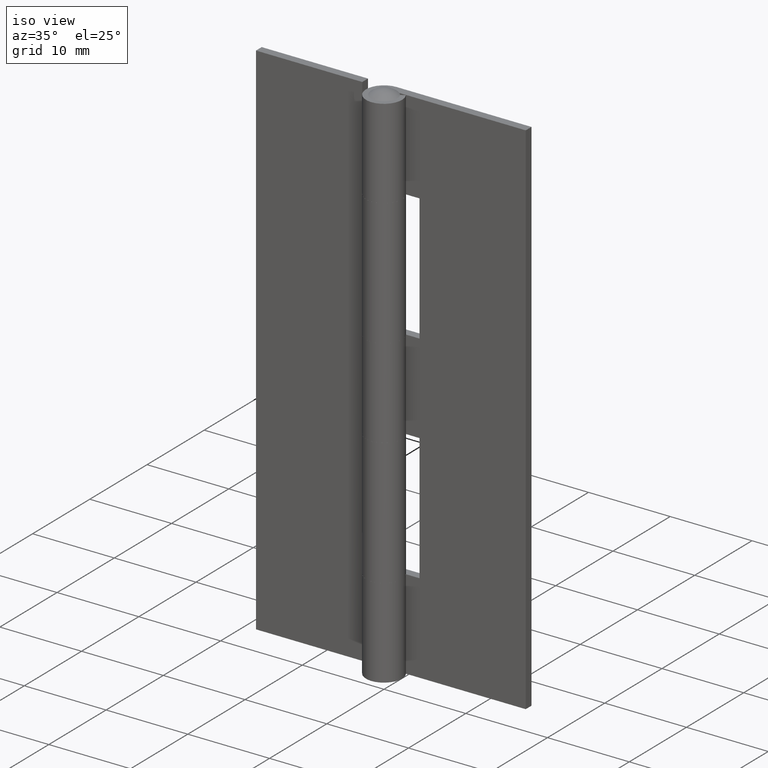
[diagram: clean part render]
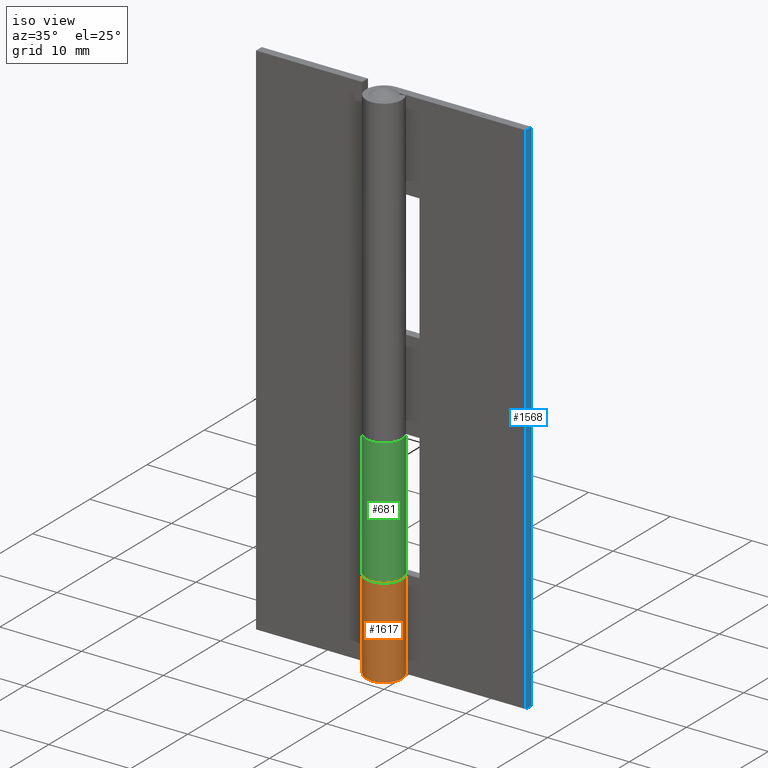
[diagram: same view with three faces highlighted in distinct colors, each labeled with its STEP entity id]
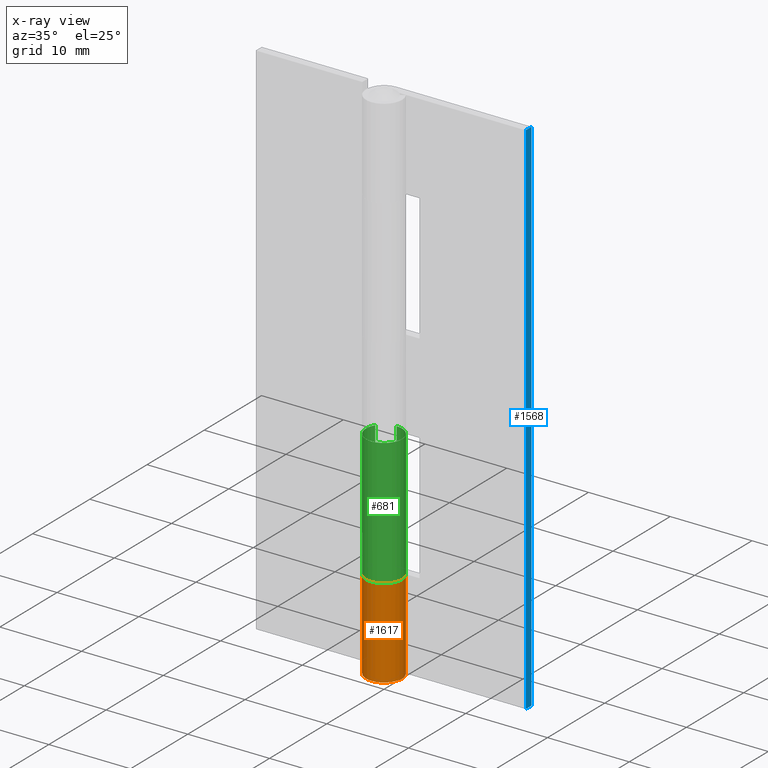
[diagram: x-ray of the same camera — body ghosted, the three highlighted faces saturated]
A machine part, iso view with three faces highlighted in distinct colors.
The next image is the same camera in x-ray (body ghosted, the three faces saturated) — at least one of them is partly hidden behind the body in this view.
Their STEP definitions:

[orange] entity #1617 — the highlighted face is a freeform B-spline surface patch.
#1419=CARTESIAN_POINT('',(1.875497693946860,1.149996000000000,11.0));
#1420=VERTEX_POINT('',#1419);
#1429=CARTESIAN_POINT('',(1.431147E-014,2.199996000000000,11.0));
#1430=VERTEX_POINT('',#1429);
#1436=CARTESIAN_POINT('',(1.875497693946860,1.149996000000000,11.0));
#1437=CARTESIAN_POINT('',(2.009625519318492,0.931606800068705,10.999999999999989));
#1438=CARTESIAN_POINT('',(2.183270822612398,0.490069220177745,11.000000000000011));
#1439=CARTESIAN_POINT('',(2.219495069139132,-0.148636746253519,11.000000000000011));
#1440=CARTESIAN_POINT('',(2.119843904468142,-0.639287639564121,11.0));
#1441=CARTESIAN_POINT('',(1.939170276186306,-1.071993787150265,10.999999999999950));
#1442=CARTESIAN_POINT('',(1.698649360677498,-1.422730253624527,11.000000000000160));
#1443=CARTESIAN_POINT('',(1.371018296197426,-1.736684492477892,10.999999999999790));
#1444=CARTESIAN_POINT('',(1.041254271199213,-1.952316943720001,11.000000000000300));
#1445=CARTESIAN_POINT('',(0.678124685029012,-2.103323195180803,10.999999999999790));
#1446=CARTESIAN_POINT('',(0.324629461246717,-2.185963516015333,10.999999999999361));
#1447=CARTESIAN_POINT('',(-0.037622934184407,-2.209616010700414,11.000000000000490));
#1448=CARTESIAN_POINT('',(-0.428963907189832,-2.170650848556859,10.999999999999719));
#1449=CARTESIAN_POINT('',(-0.865359736122544,-2.043191765639836,11.000000000000220));
#1450=CARTESIAN_POINT('',(-1.262955032607220,-1.820581764678560,10.999999999999920));
#1451=CARTESIAN_POINT('',(-1.582460864852061,-1.542591199354249,11.000000000000030));
#1452=CARTESIAN_POINT('',(-1.852228465485098,-1.216085809876153,11.000000000000060));
#1453=CARTESIAN_POINT('',(-2.078792569783175,-0.786039649083507,11.000000000000041));
#1454=CARTESIAN_POINT('',(-2.193436938425665,-0.313667227742261,10.999999999999551));
#1455=CARTESIAN_POINT('',(-2.208199713568426,0.139864505024081,11.000000000001180));
#1456=CARTESIAN_POINT('',(-2.134657297647563,0.619202328041211,10.999999999999311));
#1457=CARTESIAN_POINT('',(-1.921598587725114,1.124422371502818,11.000000000000229));
#1458=CARTESIAN_POINT('',(-1.546029340979772,1.602070804816784,10.999999999999959));
#1459=CARTESIAN_POINT('',(-1.129812539514625,1.910183678699043,10.999999999999890));
#1460=CARTESIAN_POINT('',(-0.602889676432754,2.139869225376693,11.000000000000300));
#1461=CARTESIAN_POINT('',(-0.241213871251946,2.200152881013663,10.999999999999771));
#1462=CARTESIAN_POINT('',(1.431147E-014,2.199996000000000,11.0));
#1463=B_SPLINE_CURVE_WITH_KNOTS('',3,(#1436,#1437,#1438,#1439,#1440,#1441,#1442,#1443,#1444,#1445,#1446,#1447,#1448,#1449,#1450,#1451,#1452,#1453,#1454,#1455,#1456,#1457,#1458,#1459,#1460,#1461,#1462),.UNSPECIFIED.,.F.,.U.,(4,1,1,1,1,1,1,1,1,1,1,1,1,1,1,1,1,1,1,1,1,1,1,1,4),(0.000000077843978,0.768799531178948,1.401968614064984,1.899443346042762,2.261263872264845,2.803936711289799,3.165713619587564,3.617968337846623,3.979767644631568,4.341577385854124,4.703387127085115,5.065186433907778,5.517441152048787,6.060098510942691,6.421893318902480,6.783699487248528,7.326414567862968,7.869111713455575,8.230936894797740,8.683154722890784,9.316278210237918,9.858993472508114,10.492156909763320,10.853956216570911,11.577539614206110),.UNSPECIFIED.);
#1464=EDGE_CURVE('',#1420,#1430,#1463,.T.);
#1474=CARTESIAN_POINT('',(1.875497693946860,1.149996000000000,0.0));
#1475=VERTEX_POINT('',#1474);
#1476=CARTESIAN_POINT('',(1.421085E-014,2.199996000000000,0.0));
#1477=VERTEX_POINT('',#1476);
#1478=CARTESIAN_POINT('',(1.875497693946860,1.149996000000000,0.0));
#1479=CARTESIAN_POINT('',(1.954313118858596,1.021497479588656,0.0));
#1480=CARTESIAN_POINT('',(2.078807324433945,0.761878707834410,0.0));
#1481=CARTESIAN_POINT('',(2.195855667737104,0.307385741114853,0.0));
#1482=CARTESIAN_POINT('',(2.214568097121056,-0.208736907153735,0.0));
#1483=CARTESIAN_POINT('',(2.104584508739922,-0.698467180890234,0.0));
#1484=CARTESIAN_POINT('',(1.880704029247557,-1.178223880528041,0.0));
#1485=CARTESIAN_POINT('',(1.599577960917195,-1.538393897463125,0.0));
#1486=CARTESIAN_POINT('',(1.247223842954768,-1.824337356315901,0.0));
#1487=CARTESIAN_POINT('',(0.931739601213136,-2.003916864909186,0.0));
#1488=CARTESIAN_POINT('',(0.562711095132119,-2.139873683365666,0.0));
#1489=CARTESIAN_POINT('',(0.084592089286464,-2.221042471164766,0.0));
#1490=CARTESIAN_POINT('',(-0.492417456327392,-2.175554894506599,0.0));
#1491=CARTESIAN_POINT('',(-1.089658841971883,-1.946347929130570,0.0));
#1492=CARTESIAN_POINT('',(-1.548891271952391,-1.594058872969704,0.0));
#1493=CARTESIAN_POINT('',(-1.868762065802153,-1.190112266967427,0.0));
#1494=CARTESIAN_POINT('',(-2.072347137130027,-0.783598924275459,0.0));
#1495=CARTESIAN_POINT('',(-2.196444158968052,-0.314779175868604,0.0));
#1496=CARTESIAN_POINT('',(-2.211279832714023,0.140655252560082,0.0));
#1497=CARTESIAN_POINT('',(-2.122806590088829,0.647272864313317,0.0));
#1498=CARTESIAN_POINT('',(-1.921600876444881,1.124421019141407,0.0));
#1499=CARTESIAN_POINT('',(-1.546028789437736,1.602073462545305,0.0));
#1500=CARTESIAN_POINT('',(-1.129810989537430,1.910173698192583,0.0));
#1501=CARTESIAN_POINT('',(-0.602893483678891,2.139892884929184,0.0));
#1502=CARTESIAN_POINT('',(-0.241210314875761,2.200129694295677,0.0));
#1503=CARTESIAN_POINT('',(1.421085E-014,2.199996000000000,0.0));
#1504=B_SPLINE_CURVE_WITH_KNOTS('',3,(#1478,#1479,#1480,#1481,#1482,#1483,#1484,#1485,#1486,#1487,#1488,#1489,#1490,#1491,#1492,#1493,#1494,#1495,#1496,#1497,#1498,#1499,#1500,#1501,#1502,#1503),.UNSPECIFIED.,.F.,.U.,(4,1,1,1,1,1,1,1,1,1,1,1,1,1,1,1,1,1,1,1,1,1,1,4),(0.000000077843977,0.452234280862964,0.859256757883088,1.401968614064982,1.989898777411183,2.351712335609932,2.984829712984043,3.346602768234588,3.708427949547328,4.070223689833316,4.522478085386452,5.155646344167910,5.788769831575492,6.421893318902480,6.874152535970636,7.326414567862968,7.778672313632799,8.321383006383794,8.683154722890784,9.316278210237918,9.858993472508114,10.492156909763320,10.853956216570911,11.577539614206110),.UNSPECIFIED.);
#1505=EDGE_CURVE('',#1475,#1477,#1504,.T.);
#1576=CARTESIAN_POINT('',(1.875497693946860,1.149996000000000,11.0));
#1577=CARTESIAN_POINT('',(1.875497693946860,1.149996000000000,0.0));
#1578=QUASI_UNIFORM_CURVE('',1,(#1576,#1577),.UNSPECIFIED.,.F.,.U.);
#1579=EDGE_CURVE('',#1420,#1475,#1578,.T.);
#1585=CARTESIAN_POINT('',(0.019198343190293,2.199912230893455,11.275000000000000));
#1586=CARTESIAN_POINT('',(0.019198343190293,2.199912230893455,-0.281874999999999));
#1587=CARTESIAN_POINT('',(-2.681366795014976,2.223479705814903,11.275000000000002));
#1588=CARTESIAN_POINT('',(-2.681366795014976,2.223479705814903,-0.281874999999999));
#1589=CARTESIAN_POINT('',(-2.158345654385587,-0.426059193318029,11.275000000000000));
#1590=CARTESIAN_POINT('',(-2.158345654385587,-0.426059193318029,-0.281874999999999));
#1591=CARTESIAN_POINT('',(-1.635324513756199,-3.075598092450961,11.275000000000002));
#1592=CARTESIAN_POINT('',(-1.635324513756199,-3.075598092450961,-0.281874999999999));
#1593=CARTESIAN_POINT('',(0.853712493776254,-2.027598919408487,11.275000000000000));
#1594=CARTESIAN_POINT('',(0.853712493776254,-2.027598919408487,-0.281874999999999));
#1595=CARTESIAN_POINT('',(3.342749501308707,-0.979599746366013,11.275000000000002));
#1596=CARTESIAN_POINT('',(3.342749501308707,-0.979599746366013,-0.281874999999999));
#1597=CARTESIAN_POINT('',(1.813074318463694,1.246091455609655,11.275000000000000));
#1598=CARTESIAN_POINT('',(1.813074318463694,1.246091455609655,-0.281874999999999));
#1606=(BOUNDED_SURFACE()B_SPLINE_SURFACE(1,2,((#1585,#1587,#1589,#1591,#1593,#1595,#1597),(#1586,#1588,#1590,#1592,#1594,#1596,#1598)),.UNSPECIFIED.,.F.,.F.,.U.)B_SPLINE_SURFACE_WITH_KNOTS((2,2),(3,2,2,3),(0.0,11.556875000000000),(0.0,4.181677020682062,8.363354041364124,12.545031062046190),.UNSPECIFIED.)GEOMETRIC_REPRESENTATION_ITEM()RATIONAL_B_SPLINE_SURFACE(((1.0,0.631578351302498,1.0,0.631578351302498,1.0,0.631578351302498,1.0),(1.0,0.631578351302498,1.0,0.631578351302498,1.0,0.631578351302498,1.0)))REPRESENTATION_ITEM('')SURFACE());
#1607=ORIENTED_EDGE('',*,*,#1579,.F.);
#1608=ORIENTED_EDGE('',*,*,#1464,.T.);
#1609=CARTESIAN_POINT('',(1.431147E-014,2.199996000000000,11.0));
#1610=CARTESIAN_POINT('',(1.421085E-014,2.199996000000000,0.0));
#1611=QUASI_UNIFORM_CURVE('',1,(#1609,#1610),.UNSPECIFIED.,.F.,.U.);
#1612=EDGE_CURVE('',#1430,#1477,#1611,.T.);
#1613=ORIENTED_EDGE('',*,*,#1612,.T.);
#1614=ORIENTED_EDGE('',*,*,#1505,.F.);
#1615=EDGE_LOOP('',(#1607,#1608,#1613,#1614));
#1616=FACE_OUTER_BOUND('',#1615,.T.);
#1617=ADVANCED_FACE('',(#1616),#1606,.T.);

[blue] entity #1568 — the highlighted face is a freeform B-spline surface patch.
#1109=CARTESIAN_POINT('',(16.500000000000000,1.199996000000000,0.0));
#1110=VERTEX_POINT('',#1109);
#1116=CARTESIAN_POINT('',(16.500000000000000,1.199996000000000,64.0));
#1117=VERTEX_POINT('',#1116);
#1118=CARTESIAN_POINT('',(16.500000000000000,1.199996000000000,64.0));
#1119=CARTESIAN_POINT('',(16.500000000000000,1.199996000000000,0.0));
#1120=QUASI_UNIFORM_CURVE('',1,(#1118,#1119),.UNSPECIFIED.,.F.,.U.);
#1121=EDGE_CURVE('',#1117,#1110,#1120,.T.);
#1507=CARTESIAN_POINT('',(16.500000000000000,2.199996000000000,0.0));
#1508=VERTEX_POINT('',#1507);
#1514=CARTESIAN_POINT('',(16.500000000000000,2.199996000000000,0.0));
#1515=CARTESIAN_POINT('',(16.500000000000000,1.199996000000000,0.0));
#1516=QUASI_UNIFORM_CURVE('',1,(#1514,#1515),.UNSPECIFIED.,.F.,.U.);
#1517=EDGE_CURVE('',#1508,#1110,#1516,.T.);
#1538=CARTESIAN_POINT('',(16.500000000000000,2.199996000000000,64.0));
#1539=VERTEX_POINT('',#1538);
#1540=CARTESIAN_POINT('',(16.500000000000000,2.199996000000000,64.0));
#1541=CARTESIAN_POINT('',(16.500000000000000,1.199996000000000,64.0));
#1542=QUASI_UNIFORM_CURVE('',1,(#1540,#1541),.UNSPECIFIED.,.F.,.U.);
#1543=EDGE_CURVE('',#1539,#1117,#1542,.T.);
#1553=CARTESIAN_POINT('',(16.500000000000000,1.150046001938194,67.196799875955577));
#1554=CARTESIAN_POINT('',(16.500000000000000,1.150046001938194,-3.196801592569350));
#1555=CARTESIAN_POINT('',(16.500000000000000,2.249946024883897,67.196799875955577));
#1556=CARTESIAN_POINT('',(16.500000000000000,2.249946024883897,-3.196801592569350));
#1557=B_SPLINE_SURFACE_WITH_KNOTS('',1,1,((#1553,#1555),(#1554,#1556)),.UNSPECIFIED.,.F.,.F.,.U.,(2,2),(2,2),(0.0,70.393601468524921),(0.041708334948495,0.958291687403247),.UNSPECIFIED.);
#1558=ORIENTED_EDGE('',*,*,#1517,.F.);
#1559=CARTESIAN_POINT('',(16.500000000000000,2.199996000000000,64.0));
#1560=CARTESIAN_POINT('',(16.500000000000000,2.199996000000000,0.0));
#1561=QUASI_UNIFORM_CURVE('',1,(#1559,#1560),.UNSPECIFIED.,.F.,.U.);
#1562=EDGE_CURVE('',#1539,#1508,#1561,.T.);
#1563=ORIENTED_EDGE('',*,*,#1562,.F.);
#1564=ORIENTED_EDGE('',*,*,#1543,.T.);
#1565=ORIENTED_EDGE('',*,*,#1121,.T.);
#1566=EDGE_LOOP('',(#1558,#1563,#1564,#1565));
#1567=FACE_OUTER_BOUND('',#1566,.T.);
#1568=ADVANCED_FACE('',(#1567),#1557,.T.);

[green] entity #681 — the highlighted face is a freeform B-spline surface patch.
#19=CARTESIAN_POINT('',(-1.875497693946830,1.149996000000000,11.0));
#20=VERTEX_POINT('',#19);
#26=CARTESIAN_POINT('',(-1.875497693946830,1.149996000000000,26.500000000000000));
#27=VERTEX_POINT('',#26);
#28=CARTESIAN_POINT('',(-1.875497693946830,1.149996000000000,26.500000000000000));
#29=CARTESIAN_POINT('',(-1.875497693946830,1.149996000000000,11.0));
#30=QUASI_UNIFORM_CURVE('',1,(#28,#29),.UNSPECIFIED.,.F.,.U.);
#31=EDGE_CURVE('',#27,#20,#30,.T.);
#438=CARTESIAN_POINT('',(1.421085E-014,2.199996000000000,11.0));
#439=VERTEX_POINT('',#438);
#445=CARTESIAN_POINT('',(1.421085E-014,2.199996000000000,11.0));
#446=CARTESIAN_POINT('',(0.256289523674983,2.200181734907477,11.0));
#447=CARTESIAN_POINT('',(0.678239836485089,2.125379981070982,11.000000000000020));
#448=CARTESIAN_POINT('',(1.194163039161901,1.868083713803548,10.999999999999989));
#449=CARTESIAN_POINT('',(1.607192955494276,1.535261917310919,11.000000000000030));
#450=CARTESIAN_POINT('',(1.900514899047204,1.146030841226893,11.0));
#451=CARTESIAN_POINT('',(2.097650296884589,0.703958974012746,11.000000000000020));
#452=CARTESIAN_POINT('',(2.203385191629740,0.261802227114477,10.999999999999980));
#453=CARTESIAN_POINT('',(2.207529088080028,-0.224245218650214,10.999999999999980));
#454=CARTESIAN_POINT('',(2.096259153550732,-0.727358109352972,10.999999999999989));
#455=CARTESIAN_POINT('',(1.861567676405323,-1.221279868392296,11.000000000000020));
#456=CARTESIAN_POINT('',(1.523606349160536,-1.613664245691675,10.999999999999940));
#457=CARTESIAN_POINT('',(1.133524779176878,-1.900220217535857,11.000000000000091));
#458=CARTESIAN_POINT('',(0.751226068207885,-2.084304361516785,11.0));
#459=CARTESIAN_POINT('',(0.339383444196189,-2.186452147080617,10.999999999999980));
#460=CARTESIAN_POINT('',(-0.083433713287704,-2.211061466229503,11.000000000000080));
#461=CARTESIAN_POINT('',(-0.474285852904962,-2.161211306946640,10.999999999999741));
#462=CARTESIAN_POINT('',(-0.877383861402626,-2.031234854960816,11.000000000000471));
#463=CARTESIAN_POINT('',(-1.277059902298830,-1.814553092571972,10.999999999999019));
#464=CARTESIAN_POINT('',(-1.618717171591727,-1.513045907431591,11.000000000000410));
#465=CARTESIAN_POINT('',(-1.908639831866150,-1.125459134600345,10.999999999999840));
#466=CARTESIAN_POINT('',(-2.088510996603017,-0.740073196183666,11.000000000000041));
#467=CARTESIAN_POINT('',(-2.185484775267049,-0.327784944566888,11.0));
#468=CARTESIAN_POINT('',(-2.213731550525330,0.094808383130815,11.000000000000011));
#469=CARTESIAN_POINT('',(-2.142219270735577,0.606282793143760,10.999999999999851));
#470=CARTESIAN_POINT('',(-1.985892980725446,0.970123903040132,11.000000000000419));
#471=CARTESIAN_POINT('',(-1.875497693946830,1.149996000000000,11.0));
#472=B_SPLINE_CURVE_WITH_KNOTS('',3,(#445,#446,#447,#448,#449,#450,#451,#452,#453,#454,#455,#456,#457,#458,#459,#460,#461,#462,#463,#464,#465,#466,#467,#468,#469,#470,#471),.UNSPECIFIED.,.F.,.U.,(4,1,1,1,1,1,1,1,1,1,1,1,1,1,1,1,1,1,1,1,1,1,1,1,4),(0.000000077858132,0.768799531192180,1.266289419281716,1.718550717193958,2.351712335621256,2.713488203684085,3.165713619597913,3.708427949557033,4.160676686314702,4.703387127093627,5.336552003460516,5.698325058616860,6.150541547984721,6.602812840905783,6.964608581176419,7.416862976735623,7.778672313637498,8.230936894801861,8.773599495714874,9.135372550927478,9.678084378593102,10.039894877867861,10.401700864568070,10.944416126839560,11.577539614206071),.UNSPECIFIED.);
#473=EDGE_CURVE('',#439,#20,#472,.T.);
#489=CARTESIAN_POINT('',(1.431147E-014,2.199996000000000,26.500000000000000));
#490=VERTEX_POINT('',#489);
#491=CARTESIAN_POINT('',(1.431147E-014,2.199996000000000,26.500000000000000));
#492=CARTESIAN_POINT('',(0.150742393474836,2.200011865437740,26.499999999999961));
#493=CARTESIAN_POINT('',(0.482379054540879,2.165793249999264,26.500000000000050));
#494=CARTESIAN_POINT('',(0.999932718497473,1.989243696752207,26.499999999999911));
#495=CARTESIAN_POINT('',(1.428456202171348,1.698463821297101,26.500000000000099));
#496=CARTESIAN_POINT('',(1.799056605762562,1.299465359325090,26.500000000000011));
#497=CARTESIAN_POINT('',(2.042263161464467,0.877119377343849,26.499999999999890));
#498=CARTESIAN_POINT('',(2.165964679545971,0.439631584599338,26.500000000000089));
#499=CARTESIAN_POINT('',(2.209586749842592,0.049382440460644,26.499999999999861));
#500=CARTESIAN_POINT('',(2.187076616621350,-0.374351553295110,26.500000000000188));
#501=CARTESIAN_POINT('',(2.061462071365631,-0.812392812232866,26.500000000000359));
#502=CARTESIAN_POINT('',(1.849933321944211,-1.213871568256370,26.499999999999460));
#503=CARTESIAN_POINT('',(1.586495009583245,-1.546515419431908,26.500000000000330));
#504=CARTESIAN_POINT('',(1.237419967033361,-1.837772208365214,26.500000000000021));
#505=CARTESIAN_POINT('',(0.782779301380279,-2.080226232184472,26.500000000000011));
#506=CARTESIAN_POINT('',(0.221037203476172,-2.219645629113748,26.500000000000000));
#507=CARTESIAN_POINT('',(-0.357201138905382,-2.193738654918793,26.499999999999890));
#508=CARTESIAN_POINT('',(-0.850746384801080,-2.045696178569968,26.500000000000188));
#509=CARTESIAN_POINT('',(-1.277045284170200,-1.814534725013035,26.499999999999080));
#510=CARTESIAN_POINT('',(-1.687123170161891,-1.452784887459909,26.500000000000490));
#511=CARTESIAN_POINT('',(-1.987831924736207,-0.994292354454869,26.499999999999851));
#512=CARTESIAN_POINT('',(-2.156639254618628,-0.507464156832193,26.499999999999989));
#513=CARTESIAN_POINT('',(-2.222647193488633,0.003569790989892,26.500000000000139));
#514=CARTESIAN_POINT('',(-2.154278079765004,0.578293662775202,26.499999999999780));
#515=CARTESIAN_POINT('',(-1.985887470916907,0.970125158445753,26.500000000000082));
#516=CARTESIAN_POINT('',(-1.875497693946830,1.149996000000000,26.500000000000000));
#517=B_SPLINE_CURVE_WITH_KNOTS('',3,(#491,#492,#493,#494,#495,#496,#497,#498,#499,#500,#501,#502,#503,#504,#505,#506,#507,#508,#509,#510,#511,#512,#513,#514,#515,#516),.UNSPECIFIED.,.F.,.U.,(4,1,1,1,1,1,1,1,1,1,1,1,1,1,1,1,1,1,1,1,1,1,1,4),(0.000000077843275,0.452234280862342,0.994941381198490,1.628098380274848,1.989898777410794,2.623044278472365,3.075271957944667,3.346602768234339,3.798867349392427,4.341577385853938,4.703387127084953,5.155646344167777,5.607882813668120,6.060098510942596,6.693252240739232,7.326414567862945,7.778672313632773,8.230936894797713,8.773599495711419,9.406738120509710,9.858993472508125,10.311247868074540,10.944416126838810,11.577539614206110),.UNSPECIFIED.);
#518=EDGE_CURVE('',#490,#27,#517,.T.);
#649=CARTESIAN_POINT('',(-1.834545473004467,1.214259159938558,26.887499999999999));
#650=CARTESIAN_POINT('',(-1.834545473004467,1.214259159938558,10.602812500000001));
#651=CARTESIAN_POINT('',(-3.351997021564838,-1.078360044231881,26.887499999999999));
#652=CARTESIAN_POINT('',(-3.351997021564838,-1.078360044231881,10.602812499999997));
#653=CARTESIAN_POINT('',(-0.782430253389667,-2.056157897292100,26.887499999999999));
#654=CARTESIAN_POINT('',(-0.782430253389667,-2.056157897292100,10.602812500000001));
#655=CARTESIAN_POINT('',(1.787136514785504,-3.033955750352320,26.887499999999999));
#656=CARTESIAN_POINT('',(1.787136514785504,-3.033955750352320,10.602812499999997));
#657=CARTESIAN_POINT('',(2.177685931977059,-0.312516210276020,26.887499999999999));
#658=CARTESIAN_POINT('',(2.177685931977059,-0.312516210276020,10.602812500000001));
#659=CARTESIAN_POINT('',(2.568235349168615,2.408923329800280,26.887499999999999));
#660=CARTESIAN_POINT('',(2.568235349168615,2.408923329800280,10.602812499999997));
#661=CARTESIAN_POINT('',(-0.172609696764860,2.193214146543518,26.887499999999999));
#662=CARTESIAN_POINT('',(-0.172609696764860,2.193214146543518,10.602812500000001));
#670=(BOUNDED_SURFACE()B_SPLINE_SURFACE(1,2,((#649,#651,#653,#655,#657,#659,#661),(#650,#652,#654,#656,#658,#660,#662)),.UNSPECIFIED.,.F.,.F.,.U.)B_SPLINE_SURFACE_WITH_KNOTS((2,2),(3,2,2,3),(0.0,16.284687500000000),(0.0,4.228842634315821,8.457685268631643,12.686527902947461),.UNSPECIFIED.)GEOMETRIC_REPRESENTATION_ITEM()RATIONAL_B_SPLINE_SURFACE(((1.0,0.624788514543960,1.0,0.624788514543960,1.0,0.624788514543960,1.0),(1.0,0.624788514543960,1.0,0.624788514543960,1.0,0.624788514543960,1.0)))REPRESENTATION_ITEM('')SURFACE());
#671=ORIENTED_EDGE('',*,*,#473,.F.);
#672=CARTESIAN_POINT('',(1.431147E-014,2.199996000000000,26.500000000000000));
#673=CARTESIAN_POINT('',(1.421085E-014,2.199996000000000,11.0));
#674=QUASI_UNIFORM_CURVE('',1,(#672,#673),.UNSPECIFIED.,.F.,.U.);
#675=EDGE_CURVE('',#490,#439,#674,.T.);
#676=ORIENTED_EDGE('',*,*,#675,.F.);
#677=ORIENTED_EDGE('',*,*,#518,.T.);
#678=ORIENTED_EDGE('',*,*,#31,.T.);
#679=EDGE_LOOP('',(#671,#676,#677,#678));
#680=FACE_OUTER_BOUND('',#679,.T.);
#681=ADVANCED_FACE('',(#680),#670,.T.);